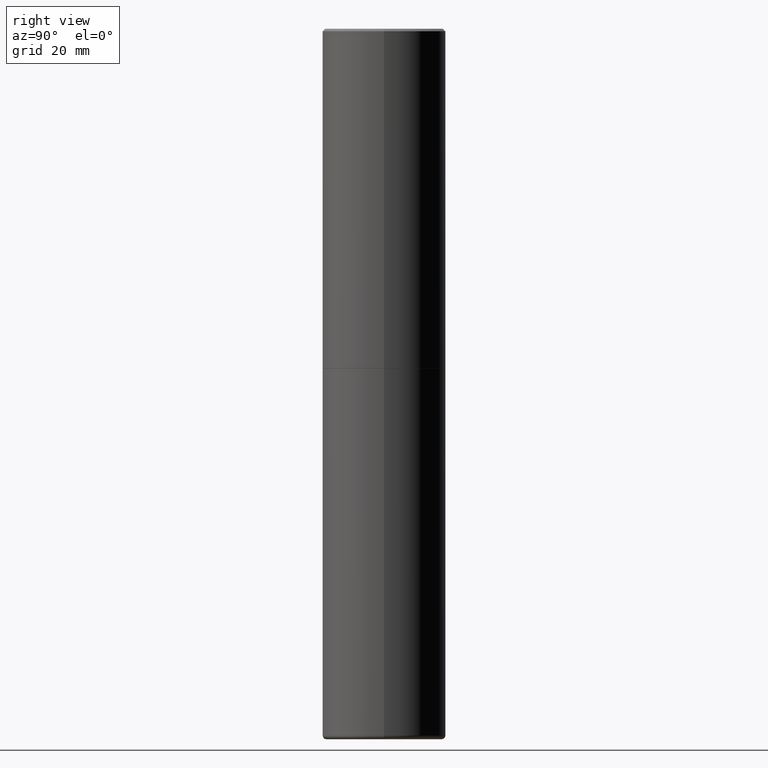
[diagram: clean part render]
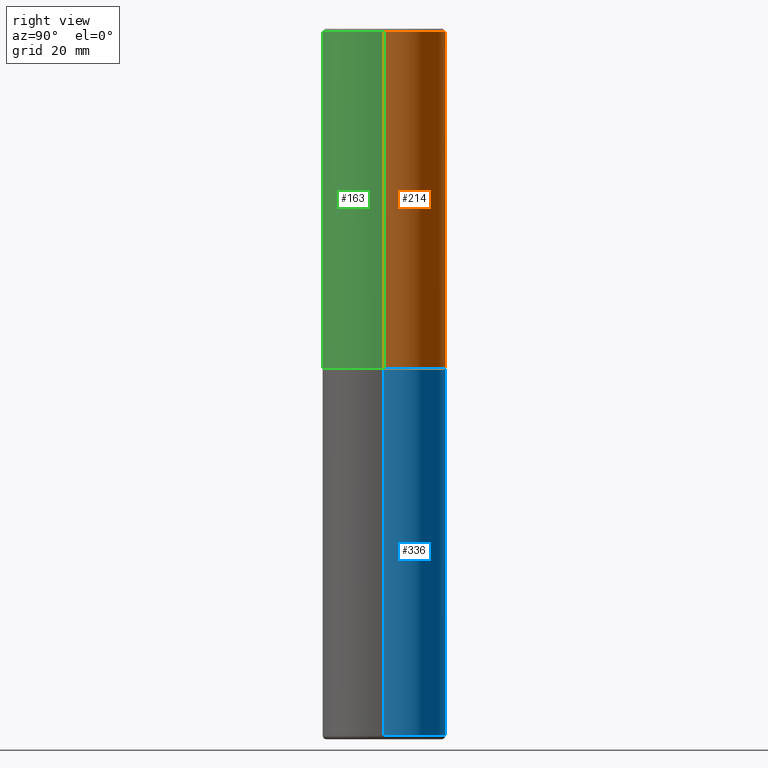
[diagram: same view with three faces highlighted in distinct colors, each labeled with its STEP entity id]
A machine part, right view with three faces highlighted in distinct colors.
Their STEP definitions:

[orange] entity #214 — the highlighted cylindrical surface (partial cylindrical patch) has radius 12.7 mm, axis along (-0, 0, 1).
#7 = LINE ( 'NONE', #235, #367 ) ;
#20 = VECTOR ( 'NONE', #117, 39.37007874015748143 ) ;
#30 = ORIENTED_EDGE ( 'NONE', *, *, #403, .T. ) ;
#32 = ORIENTED_EDGE ( 'NONE', *, *, #415, .F. ) ;
#35 = DIRECTION ( 'NONE',  ( 1.000000000000000000, -6.982962677686265922E-15, 0.000000000000000000 ) ) ;
#40 = DIRECTION ( 'NONE',  ( -2.445468806185136877E-29, 3.491481338843145188E-15, 1.000000000000000000 ) ) ;
#49 = CARTESIAN_POINT ( 'NONE',  ( 0.5000000000000002220, -3.491481338843134933E-15, 2.438088387897969017E-29 ) ) ;
#58 = VERTEX_POINT ( 'NONE', #365 ) ;
#72 = ORIENTED_EDGE ( 'NONE', *, *, #229, .F. ) ;
#78 = EDGE_LOOP ( 'NONE', ( #345, #30, #32, #72 ) ) ;
#82 = VERTEX_POINT ( 'NONE', #268 ) ;
#85 = DIRECTION ( 'NONE',  ( -2.445468806185136597E-29, 3.491481338843145583E-15, 1.000000000000000000 ) ) ;
#88 = VERTEX_POINT ( 'NONE', #162 ) ;
#104 = AXIS2_PLACEMENT_3D ( 'NONE', #131, #108, #258 ) ;
#108 = DIRECTION ( 'NONE',  ( -2.445468806185136597E-29, 3.491481338843145583E-15, 1.000000000000000000 ) ) ;
#117 = DIRECTION ( 'NONE',  ( -2.445468806185136877E-29, 3.491481338843145188E-15, 1.000000000000000000 ) ) ;
#131 = CARTESIAN_POINT ( 'NONE',  ( 4.890937612370299433E-31, -6.982962677686328587E-17, -0.02000000000000010797 ) ) ;
#158 = EDGE_CURVE ( 'NONE', #88, #58, #189, .T. ) ;
#161 = DIRECTION ( 'NONE',  ( -2.445468806185136597E-29, 3.491481338843145583E-15, 1.000000000000000000 ) ) ;
#162 = CARTESIAN_POINT ( 'NONE',  ( 0.5000000000000003331, -1.308956353932294179E-14, -2.748999999999999666 ) ) ;
#173 = AXIS2_PLACEMENT_3D ( 'NONE', #277, #85, #213 ) ;
#189 = CIRCLE ( 'NONE', #322, 0.5000000000000003331 ) ;
#205 = CARTESIAN_POINT ( 'NONE',  ( 6.722593748202938917E-29, -9.598082200479805274E-15, -2.748999999999999666 ) ) ;
#209 = LINE ( 'NONE', #49, #20 ) ;
#213 = DIRECTION ( 'NONE',  ( 1.000000000000000000, -6.982962677686266711E-15, 4.876176775795935793E-29 ) ) ;
#214 = ADVANCED_FACE ( 'NONE', ( #318 ), #370, .T. ) ;
#229 = EDGE_CURVE ( 'NONE', #88, #418, #209, .T. ) ;
#235 = CARTESIAN_POINT ( 'NONE',  ( -0.5000000000000002220, 3.552713678800502507E-15, -2.459467545127454012E-29 ) ) ;
#258 = DIRECTION ( 'NONE',  ( 1.000000000000000000, -6.982962677686265922E-15, 0.000000000000000000 ) ) ;
#263 = CIRCLE ( 'NONE', #104, 0.5000000000000001110 ) ;
#268 = CARTESIAN_POINT ( 'NONE',  ( -0.5000000000000001110, 3.421651712066270452E-15, -0.02000000000000010797 ) ) ;
#277 = CARTESIAN_POINT ( 'NONE',  ( 0.000000000000000000, 0.000000000000000000, 0.000000000000000000 ) ) ;
#318 = FACE_OUTER_BOUND ( 'NONE', #78, .T. ) ;
#322 = AXIS2_PLACEMENT_3D ( 'NONE', #205, #161, #35 ) ;
#328 = CARTESIAN_POINT ( 'NONE',  ( 0.5000000000000001110, -3.500078625662629868E-15, -0.02000000000000010797 ) ) ;
#345 = ORIENTED_EDGE ( 'NONE', *, *, #158, .T. ) ;
#365 = CARTESIAN_POINT ( 'NONE',  ( -0.5000000000000003331, -1.281242234827830793E-15, -2.748999999999999666 ) ) ;
#367 = VECTOR ( 'NONE', #40, 39.37007874015748143 ) ;
#370 = CYLINDRICAL_SURFACE ( 'NONE', #173, 0.5000000000000002220 ) ;
#403 = EDGE_CURVE ( 'NONE', #58, #82, #7, .T. ) ;
#415 = EDGE_CURVE ( 'NONE', #418, #82, #263, .T. ) ;
#418 = VERTEX_POINT ( 'NONE', #328 ) ;

[blue] entity #336 — the highlighted cylindrical surface (partial cylindrical patch) has radius 12.7 mm, axis along (-0, 0, 1).
#6 = ORIENTED_EDGE ( 'NONE', *, *, #139, .F. ) ;
#8 = EDGE_CURVE ( 'NONE', #60, #394, #221, .T. ) ;
#9 = AXIS2_PLACEMENT_3D ( 'NONE', #278, #386, #315 ) ;
#24 = CARTESIAN_POINT ( 'NONE',  ( -0.5000000000000000000, 3.552713678800500929E-15, -2.459467545127452891E-29 ) ) ;
#39 = VECTOR ( 'NONE', #244, 39.37007874015748143 ) ;
#60 = VERTEX_POINT ( 'NONE', #105 ) ;
#71 = DIRECTION ( 'NONE',  ( -2.445468806185136597E-29, 3.491481338843145583E-15, 1.000000000000000000 ) ) ;
#77 = DIRECTION ( 'NONE',  ( -2.445468806185136597E-29, 3.491481338843145583E-15, 1.000000000000000000 ) ) ;
#99 = CYLINDRICAL_SURFACE ( 'NONE', #153, 0.5000000000000000000 ) ;
#105 = CARTESIAN_POINT ( 'NONE',  ( 0.4999999999999998335, -2.346275459702591989E-14, -5.719999999999998863 ) ) ;
#116 = EDGE_CURVE ( 'NONE', #60, #148, #226, .T. ) ;
#125 = EDGE_LOOP ( 'NONE', ( #307, #223, #6, #355 ) ) ;
#136 = VERTEX_POINT ( 'NONE', #178 ) ;
#139 = EDGE_CURVE ( 'NONE', #394, #136, #372, .T. ) ;
#148 = VERTEX_POINT ( 'NONE', #151 ) ;
#151 = CARTESIAN_POINT ( 'NONE',  ( -0.4999999999999998335, -1.641855957938228876E-14, -5.719999999999998863 ) ) ;
#153 = AXIS2_PLACEMENT_3D ( 'NONE', #206, #77, #411 ) ;
#178 = CARTESIAN_POINT ( 'NONE',  ( -0.5000000000000000000, -1.123370979120021648E-14, -2.749999999999999556 ) ) ;
#184 = CARTESIAN_POINT ( 'NONE',  ( 0.5000000000000000000, -3.491481338843133355E-15, 2.438088387897967896E-29 ) ) ;
#206 = CARTESIAN_POINT ( 'NONE',  ( 0.000000000000000000, 0.000000000000000000, 0.000000000000000000 ) ) ;
#221 = LINE ( 'NONE', #184, #253 ) ;
#223 = ORIENTED_EDGE ( 'NONE', *, *, #259, .T. ) ;
#226 = CIRCLE ( 'NONE', #262, 0.5000000000000001110 ) ;
#244 = DIRECTION ( 'NONE',  ( -2.445468806185136877E-29, 3.491481338843145188E-15, 1.000000000000000000 ) ) ;
#251 = DIRECTION ( 'NONE',  ( 1.000000000000000000, -6.982962677686269077E-15, 0.000000000000000000 ) ) ;
#253 = VECTOR ( 'NONE', #320, 39.37007874015748143 ) ;
#259 = EDGE_CURVE ( 'NONE', #148, #136, #343, .T. ) ;
#262 = AXIS2_PLACEMENT_3D ( 'NONE', #265, #71, #251 ) ;
#265 = CARTESIAN_POINT ( 'NONE',  ( 1.398808157137897855E-28, -1.997127325818278653E-14, -5.719999999999998863 ) ) ;
#278 = CARTESIAN_POINT ( 'NONE',  ( 6.725039217009123399E-29, -9.601573681818648281E-15, -2.749999999999999556 ) ) ;
#292 = FACE_OUTER_BOUND ( 'NONE', #125, .T. ) ;
#307 = ORIENTED_EDGE ( 'NONE', *, *, #116, .T. ) ;
#315 = DIRECTION ( 'NONE',  ( 1.000000000000000000, -6.982962677686266711E-15, 0.000000000000000000 ) ) ;
#320 = DIRECTION ( 'NONE',  ( -2.445468806185136877E-29, 3.491481338843145188E-15, 1.000000000000000000 ) ) ;
#336 = ADVANCED_FACE ( 'NONE', ( #292 ), #99, .T. ) ;
#337 = CARTESIAN_POINT ( 'NONE',  ( 0.5000000000000000000, -1.309305502066178164E-14, -2.749999999999999556 ) ) ;
#343 = LINE ( 'NONE', #24, #39 ) ;
#355 = ORIENTED_EDGE ( 'NONE', *, *, #8, .F. ) ;
#372 = CIRCLE ( 'NONE', #9, 0.5000000000000000000 ) ;
#386 = DIRECTION ( 'NONE',  ( -2.445468806185136597E-29, 3.491481338843145583E-15, 1.000000000000000000 ) ) ;
#394 = VERTEX_POINT ( 'NONE', #337 ) ;
#411 = DIRECTION ( 'NONE',  ( 1.000000000000000000, -6.982962677686266711E-15, 4.876176775795935793E-29 ) ) ;

[green] entity #163 — the highlighted cylindrical surface (partial cylindrical patch) has radius 12.7 mm, axis along (-0, 0, 1).
#7 = LINE ( 'NONE', #235, #367 ) ;
#17 = CARTESIAN_POINT ( 'NONE',  ( 6.722593748202938917E-29, -9.598082200479805274E-15, -2.748999999999999666 ) ) ;
#20 = VECTOR ( 'NONE', #117, 39.37007874015748143 ) ;
#33 = EDGE_LOOP ( 'NONE', ( #51, #340, #366, #45 ) ) ;
#40 = DIRECTION ( 'NONE',  ( -2.445468806185136877E-29, 3.491481338843145188E-15, 1.000000000000000000 ) ) ;
#42 = CARTESIAN_POINT ( 'NONE',  ( 0.000000000000000000, 0.000000000000000000, 0.000000000000000000 ) ) ;
#45 = ORIENTED_EDGE ( 'NONE', *, *, #92, .F. ) ;
#49 = CARTESIAN_POINT ( 'NONE',  ( 0.5000000000000002220, -3.491481338843134933E-15, 2.438088387897969017E-29 ) ) ;
#50 = DIRECTION ( 'NONE',  ( -2.445468806185136597E-29, 3.491481338843145583E-15, 1.000000000000000000 ) ) ;
#51 = ORIENTED_EDGE ( 'NONE', *, *, #403, .F. ) ;
#58 = VERTEX_POINT ( 'NONE', #365 ) ;
#66 = AXIS2_PLACEMENT_3D ( 'NONE', #102, #295, #369 ) ;
#82 = VERTEX_POINT ( 'NONE', #268 ) ;
#84 = AXIS2_PLACEMENT_3D ( 'NONE', #17, #348, #301 ) ;
#88 = VERTEX_POINT ( 'NONE', #162 ) ;
#92 = EDGE_CURVE ( 'NONE', #82, #418, #179, .T. ) ;
#102 = CARTESIAN_POINT ( 'NONE',  ( 4.890937612370299433E-31, -6.982962677686328587E-17, -0.02000000000000010797 ) ) ;
#117 = DIRECTION ( 'NONE',  ( -2.445468806185136877E-29, 3.491481338843145188E-15, 1.000000000000000000 ) ) ;
#140 = DIRECTION ( 'NONE',  ( 1.000000000000000000, -6.982962677686266711E-15, 4.876176775795935793E-29 ) ) ;
#162 = CARTESIAN_POINT ( 'NONE',  ( 0.5000000000000003331, -1.308956353932294179E-14, -2.748999999999999666 ) ) ;
#163 = ADVANCED_FACE ( 'NONE', ( #190 ), #335, .T. ) ;
#179 = CIRCLE ( 'NONE', #66, 0.5000000000000001110 ) ;
#190 = FACE_OUTER_BOUND ( 'NONE', #33, .T. ) ;
#209 = LINE ( 'NONE', #49, #20 ) ;
#229 = EDGE_CURVE ( 'NONE', #88, #418, #209, .T. ) ;
#235 = CARTESIAN_POINT ( 'NONE',  ( -0.5000000000000002220, 3.552713678800502507E-15, -2.459467545127454012E-29 ) ) ;
#268 = CARTESIAN_POINT ( 'NONE',  ( -0.5000000000000001110, 3.421651712066270452E-15, -0.02000000000000010797 ) ) ;
#269 = AXIS2_PLACEMENT_3D ( 'NONE', #42, #50, #140 ) ;
#295 = DIRECTION ( 'NONE',  ( -2.445468806185136597E-29, 3.491481338843145583E-15, 1.000000000000000000 ) ) ;
#301 = DIRECTION ( 'NONE',  ( 1.000000000000000000, -6.982962677686265922E-15, 0.000000000000000000 ) ) ;
#328 = CARTESIAN_POINT ( 'NONE',  ( 0.5000000000000001110, -3.500078625662629868E-15, -0.02000000000000010797 ) ) ;
#335 = CYLINDRICAL_SURFACE ( 'NONE', #269, 0.5000000000000002220 ) ;
#340 = ORIENTED_EDGE ( 'NONE', *, *, #356, .T. ) ;
#348 = DIRECTION ( 'NONE',  ( -2.445468806185136597E-29, 3.491481338843145583E-15, 1.000000000000000000 ) ) ;
#356 = EDGE_CURVE ( 'NONE', #58, #88, #404, .T. ) ;
#365 = CARTESIAN_POINT ( 'NONE',  ( -0.5000000000000003331, -1.281242234827830793E-15, -2.748999999999999666 ) ) ;
#366 = ORIENTED_EDGE ( 'NONE', *, *, #229, .T. ) ;
#367 = VECTOR ( 'NONE', #40, 39.37007874015748143 ) ;
#369 = DIRECTION ( 'NONE',  ( 1.000000000000000000, -6.982962677686265922E-15, 0.000000000000000000 ) ) ;
#403 = EDGE_CURVE ( 'NONE', #58, #82, #7, .T. ) ;
#404 = CIRCLE ( 'NONE', #84, 0.5000000000000003331 ) ;
#418 = VERTEX_POINT ( 'NONE', #328 ) ;